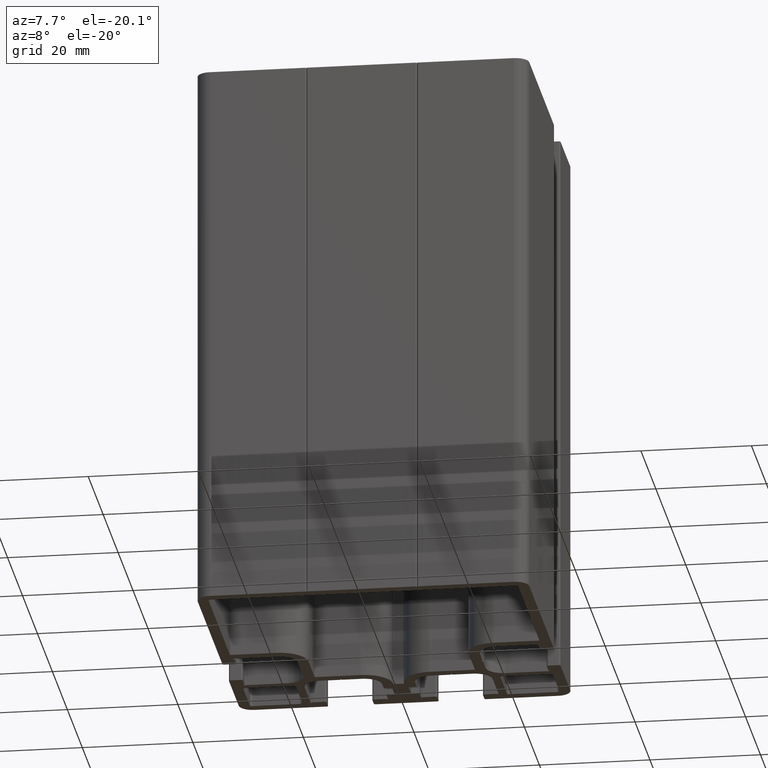
[diagram: clean part render]
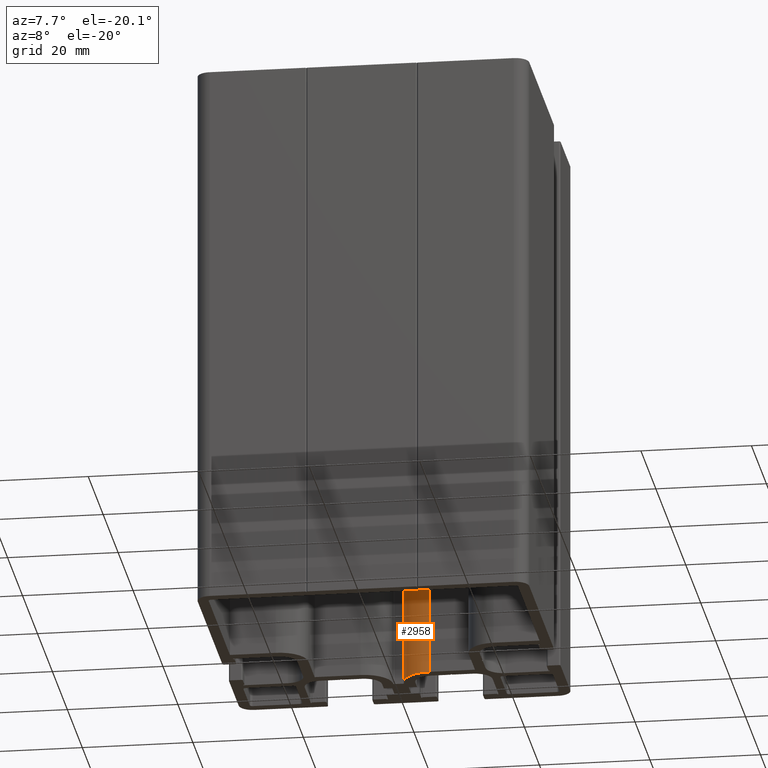
[diagram: same view with one face highlighted and labeled with its STEP entity id]
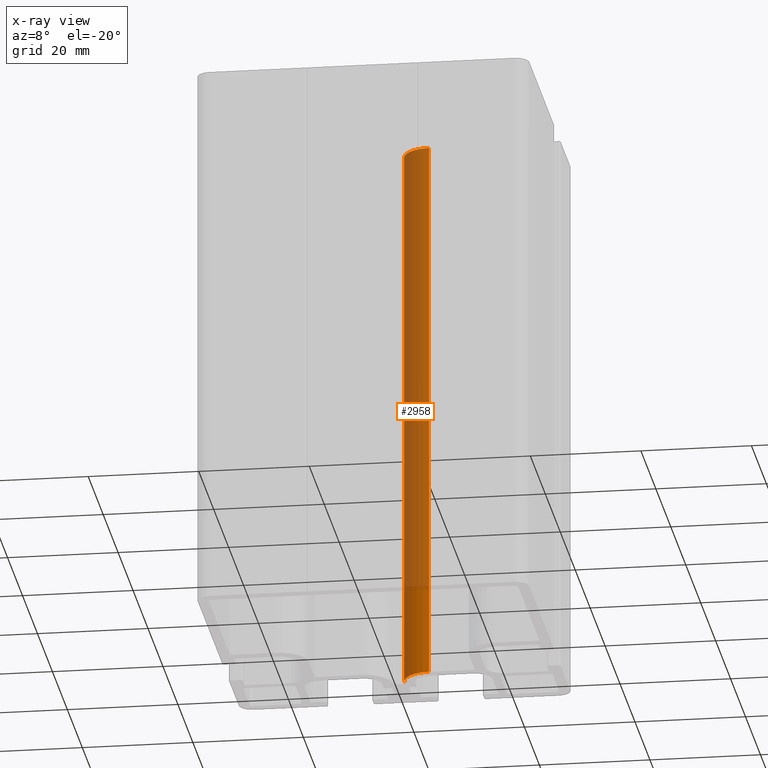
[diagram: x-ray of the same camera — body ghosted, the highlighted face saturated]
A machine part, auxiliary view. The second image highlights one B-rep face of the part: STEP entity #2958.
The next image is the same camera in x-ray: the body ghosted, the highlighted face saturated — about 84% of this face is hidden behind the body in this view.
In plain terms, the highlighted cylindrical surface (edge-blend (fillet) strip) has radius 5.2 mm, axis along (0, 0, 1).
Its self-contained STEP definition (entity closure, byte-faithful):
#25=CIRCLE('',#3119,5.20000000000002);
#26=CIRCLE('',#3120,5.20000000000002);
#143=CYLINDRICAL_SURFACE('',#3118,5.20000000000002);
#206=FACE_OUTER_BOUND('',#360,.T.);
#360=EDGE_LOOP('',(#1967,#1968,#1969,#1970));
#525=LINE('',#4301,#861);
#527=LINE('',#4307,#863);
#861=VECTOR('',#3413,100.);
#863=VECTOR('',#3419,100.);
#1197=VERTEX_POINT('',#4298);
#1198=VERTEX_POINT('',#4300);
#1199=VERTEX_POINT('',#4304);
#1200=VERTEX_POINT('',#4306);
#1505=EDGE_CURVE('',#1197,#1198,#525,.T.);
#1507=EDGE_CURVE('',#1199,#1197,#25,.T.);
#1508=EDGE_CURVE('',#1199,#1200,#527,.T.);
#1509=EDGE_CURVE('',#1198,#1200,#26,.T.);
#1967=ORIENTED_EDGE('',*,*,#1507,.F.);
#1968=ORIENTED_EDGE('',*,*,#1508,.T.);
#1969=ORIENTED_EDGE('',*,*,#1509,.F.);
#1970=ORIENTED_EDGE('',*,*,#1505,.F.);
#2958=ADVANCED_FACE('',(#206),#143,.T.);
#3118=AXIS2_PLACEMENT_3D('',#4303,#3415,#3416);
#3119=AXIS2_PLACEMENT_3D('',#4305,#3417,#3418);
#3120=AXIS2_PLACEMENT_3D('',#4308,#3420,#3421);
#3413=DIRECTION('',(0.,0.,1.));
#3415=DIRECTION('center_axis',(0.,0.,1.));
#3416=DIRECTION('ref_axis',(1.,2.13504427812529E-15,0.));
#3417=DIRECTION('center_axis',(0.,0.,-1.));
#3418=DIRECTION('ref_axis',(1.,2.13504427812529E-15,0.));
#3419=DIRECTION('',(0.,0.,1.));
#3420=DIRECTION('center_axis',(0.,0.,1.));
#3421=DIRECTION('ref_axis',(1.,2.13504427812529E-15,0.));
#4298=CARTESIAN_POINT('',(0.999999999999963,19.7,0.));
#4300=CARTESIAN_POINT('',(0.999999999999963,19.7,100.));
#4301=CARTESIAN_POINT('',(0.999999999999963,19.7,0.));
#4303=CARTESIAN_POINT('Origin',(6.19999999999998,19.7,0.));
#4304=CARTESIAN_POINT('',(6.19999999999998,14.5,0.));
#4305=CARTESIAN_POINT('Origin',(6.19999999999998,19.7,0.));
#4306=CARTESIAN_POINT('',(6.19999999999999,14.5,100.));
#4307=CARTESIAN_POINT('',(6.19999999999998,14.5,0.));
#4308=CARTESIAN_POINT('Origin',(6.19999999999998,19.7,100.));